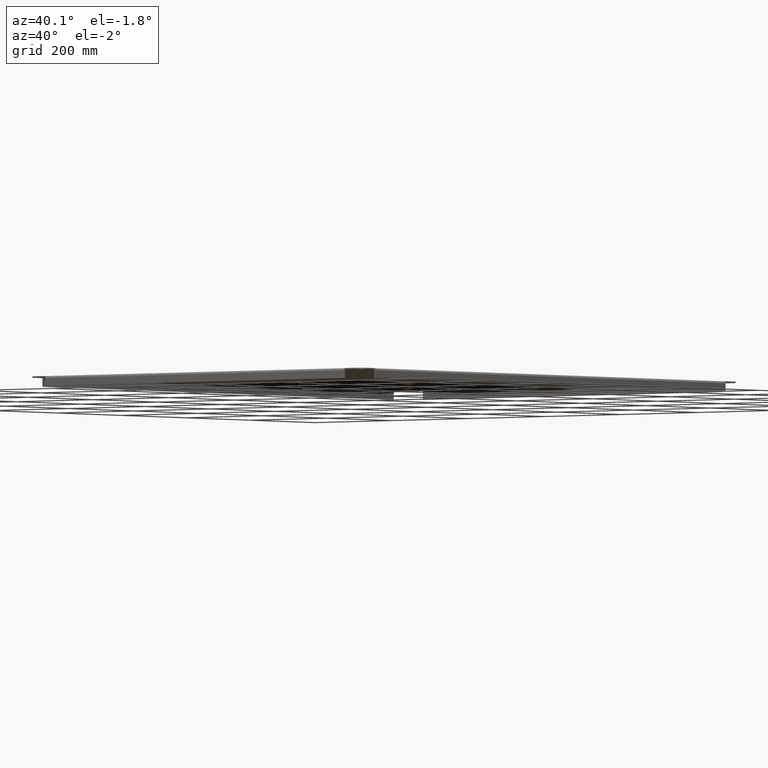
[diagram: clean part render]
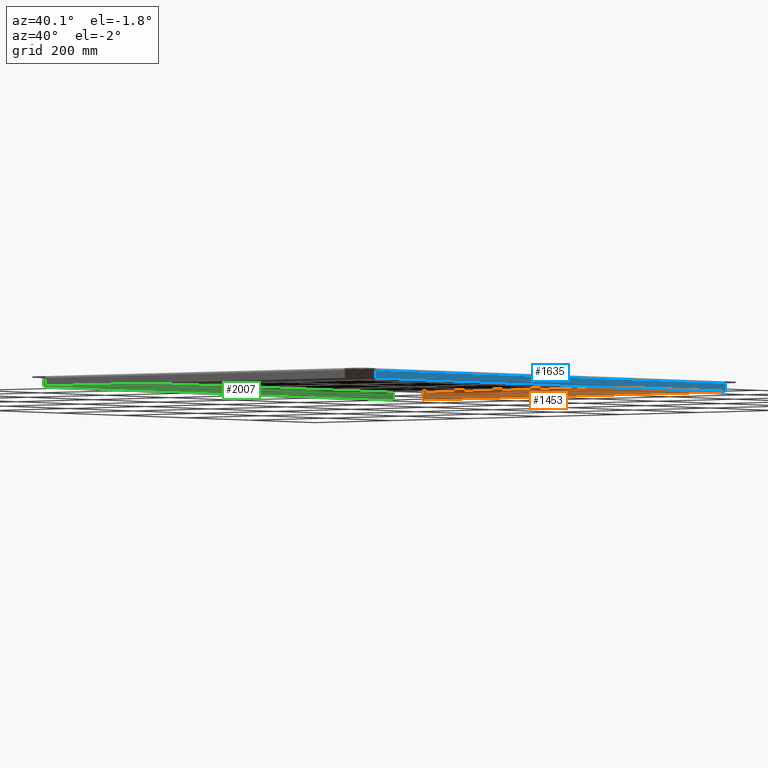
[diagram: same view with three faces highlighted in distinct colors, each labeled with its STEP entity id]
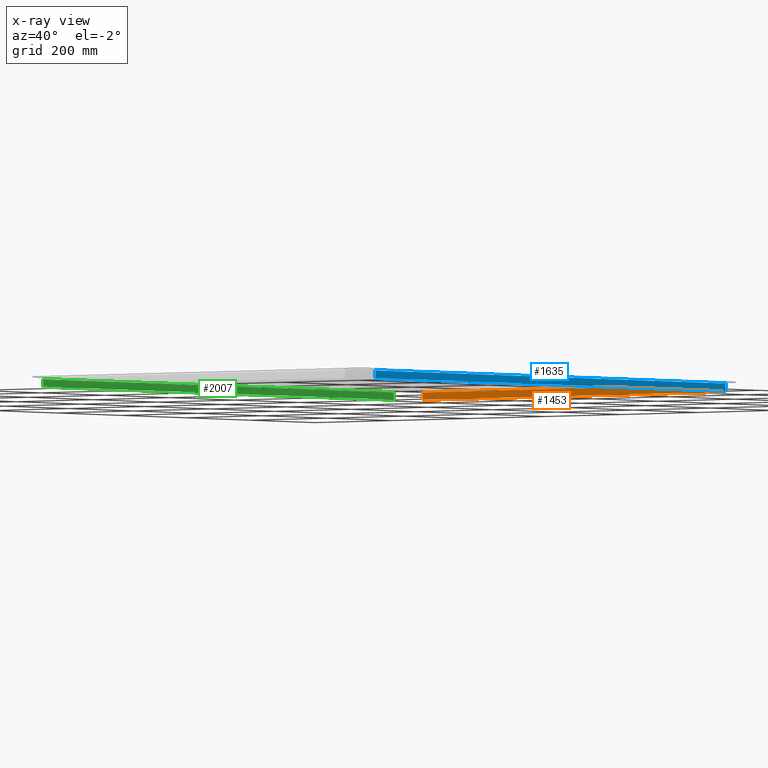
[diagram: x-ray of the same camera — body ghosted, the three highlighted faces saturated]
A machine part, auxiliary view with three faces highlighted in distinct colors.
The next image is the same camera in x-ray (body ghosted, the three faces saturated) — at least one of them is partly hidden behind the body in this view.
Their STEP definitions:

[orange] entity #1453 — the highlighted planar face has unit normal (0, -1, 0).
#1364=CARTESIAN_POINT('',(32.481999999999992,46.10625000000001,-0.68025));
#1365=VERTEX_POINT('',#1364);
#1366=CARTESIAN_POINT('',(32.481999999999992,46.106250000000003,-0.093750000000444));
#1367=VERTEX_POINT('',#1366);
#1368=CARTESIAN_POINT('',(32.481999999999992,46.10625000000001,-0.68025));
#1369=DIRECTION('',(0.0,0.0,1.0));
#1370=VECTOR('',#1369,0.5865);
#1371=LINE('',#1368,#1370);
#1372=EDGE_CURVE('',#1365,#1367,#1371,.T.);
#1412=CARTESIAN_POINT('',(1.717999999999987,46.106250000000003,-0.68025));
#1413=VERTEX_POINT('',#1412);
#1414=CARTESIAN_POINT('',(1.717999999999987,46.106250000000003,-0.68025));
#1415=DIRECTION('',(1.0,0.0,0.0));
#1416=VECTOR('',#1415,30.764000000000006);
#1417=LINE('',#1414,#1416);
#1418=EDGE_CURVE('',#1413,#1365,#1417,.T.);
#1430=CARTESIAN_POINT('',(1.717999999999987,46.106250000000003,-0.68025));
#1431=DIRECTION('',(0.0,-1.0,0.0));
#1432=DIRECTION('',(0.0,0.0,-1.0));
#1433=AXIS2_PLACEMENT_3D('',#1430,#1431,#1432);
#1434=PLANE('',#1433);
#1435=CARTESIAN_POINT('',(1.717999999999989,46.106249999999996,-0.093750000000012));
#1436=VERTEX_POINT('',#1435);
#1437=CARTESIAN_POINT('',(1.717999999999986,46.106249999999996,-0.09375000000001));
#1438=DIRECTION('',(1.0,0.0,0.0));
#1439=VECTOR('',#1438,30.764000000000006);
#1440=LINE('',#1437,#1439);
#1441=EDGE_CURVE('',#1436,#1367,#1440,.T.);
#1442=ORIENTED_EDGE('',*,*,#1441,.F.);
#1443=CARTESIAN_POINT('',(1.717999999999987,46.106250000000003,-0.09375));
#1444=DIRECTION('',(0.0,0.0,-1.0));
#1445=VECTOR('',#1444,0.5865);
#1446=LINE('',#1443,#1445);
#1447=EDGE_CURVE('',#1436,#1413,#1446,.T.);
#1448=ORIENTED_EDGE('',*,*,#1447,.T.);
#1449=ORIENTED_EDGE('',*,*,#1418,.T.);
#1450=ORIENTED_EDGE('',*,*,#1372,.T.);
#1451=EDGE_LOOP('',(#1442,#1448,#1449,#1450));
#1452=FACE_OUTER_BOUND('',#1451,.T.);
#1453=ADVANCED_FACE('',(#1452),#1434,.T.);

[blue] entity #1635 — the highlighted planar face has unit normal (1, 0, 0).
#1596=CARTESIAN_POINT('',(34.199999999999996,44.482000000000006,0.09375));
#1597=DIRECTION('',(1.0,0.0,0.0));
#1598=DIRECTION('',(0.0,0.0,-1.0));
#1599=AXIS2_PLACEMENT_3D('',#1596,#1597,#1598);
#1600=PLANE('',#1599);
#1601=CARTESIAN_POINT('',(34.199999999999996,1.717999999999995,-0.093750000000019));
#1602=VERTEX_POINT('',#1601);
#1603=CARTESIAN_POINT('',(34.199999999999989,44.481999999999999,-0.093750000000012));
#1604=VERTEX_POINT('',#1603);
#1605=CARTESIAN_POINT('',(34.199999999999989,1.717999999999989,-0.093750000000015));
#1606=DIRECTION('',(0.0,1.0,0.0));
#1607=VECTOR('',#1606,42.76400000000001);
#1608=LINE('',#1605,#1607);
#1609=EDGE_CURVE('',#1602,#1604,#1608,.T.);
#1610=ORIENTED_EDGE('',*,*,#1609,.F.);
#1611=CARTESIAN_POINT('',(34.200000000000003,1.717999999999995,-0.68025));
#1612=VERTEX_POINT('',#1611);
#1613=CARTESIAN_POINT('',(34.200000000000003,1.718,-0.09375));
#1614=DIRECTION('',(0.0,0.0,-1.0));
#1615=VECTOR('',#1614,0.5865);
#1616=LINE('',#1613,#1615);
#1617=EDGE_CURVE('',#1602,#1612,#1616,.T.);
#1618=ORIENTED_EDGE('',*,*,#1617,.T.);
#1619=CARTESIAN_POINT('',(34.199999999999996,44.482000000000006,-0.68025));
#1620=VERTEX_POINT('',#1619);
#1621=CARTESIAN_POINT('',(34.199999999999996,44.482000000000006,-0.68025));
#1622=DIRECTION('',(0.0,-1.0,0.0));
#1623=VECTOR('',#1622,42.76400000000001);
#1624=LINE('',#1621,#1623);
#1625=EDGE_CURVE('',#1620,#1612,#1624,.T.);
#1626=ORIENTED_EDGE('',*,*,#1625,.F.);
#1627=CARTESIAN_POINT('',(34.199999999999996,44.482000000000006,-0.68025));
#1628=DIRECTION('',(0.0,0.0,1.0));
#1629=VECTOR('',#1628,0.5865);
#1630=LINE('',#1627,#1629);
#1631=EDGE_CURVE('',#1620,#1604,#1630,.T.);
#1632=ORIENTED_EDGE('',*,*,#1631,.T.);
#1633=EDGE_LOOP('',(#1610,#1618,#1626,#1632));
#1634=FACE_OUTER_BOUND('',#1633,.T.);
#1635=ADVANCED_FACE('',(#1634),#1600,.T.);

[green] entity #2007 — the highlighted planar face has unit normal (1, 0, 0).
#1918=CARTESIAN_POINT('',(0.093749999999986,44.481999999999999,-0.68025));
#1919=VERTEX_POINT('',#1918);
#1920=CARTESIAN_POINT('',(0.093749999999999,44.481999999999999,-0.093749999999744));
#1921=VERTEX_POINT('',#1920);
#1922=CARTESIAN_POINT('',(0.093749999999986,44.481999999999999,-0.68025));
#1923=DIRECTION('',(0.0,0.0,1.0));
#1924=VECTOR('',#1923,0.5865);
#1925=LINE('',#1922,#1924);
#1926=EDGE_CURVE('',#1919,#1921,#1925,.T.);
#1966=CARTESIAN_POINT('',(0.093749999999999,1.717999999999998,-0.68025));
#1967=VERTEX_POINT('',#1966);
#1968=CARTESIAN_POINT('',(0.093749999999999,1.717999999999998,-0.68025));
#1969=DIRECTION('',(0.0,1.0,0.0));
#1970=VECTOR('',#1969,42.764000000000003);
#1971=LINE('',#1968,#1970);
#1972=EDGE_CURVE('',#1967,#1919,#1971,.T.);
#1984=CARTESIAN_POINT('',(0.093749999999999,1.717999999999998,-0.68025));
#1985=DIRECTION('',(1.0,0.0,0.0));
#1986=DIRECTION('',(0.0,0.0,-1.0));
#1987=AXIS2_PLACEMENT_3D('',#1984,#1985,#1986);
#1988=PLANE('',#1987);
#1989=CARTESIAN_POINT('',(0.093750000000013,1.718,-0.093750000000027));
#1990=VERTEX_POINT('',#1989);
#1991=CARTESIAN_POINT('',(0.093750000000012,1.717999999999996,-0.093750000000027));
#1992=DIRECTION('',(0.0,1.0,0.0));
#1993=VECTOR('',#1992,42.763999999999996);
#1994=LINE('',#1991,#1993);
#1995=EDGE_CURVE('',#1990,#1921,#1994,.T.);
#1996=ORIENTED_EDGE('',*,*,#1995,.F.);
#1997=CARTESIAN_POINT('',(0.093749999999999,1.717999999999998,-0.09375));
#1998=DIRECTION('',(0.0,0.0,-1.0));
#1999=VECTOR('',#1998,0.5865);
#2000=LINE('',#1997,#1999);
#2001=EDGE_CURVE('',#1990,#1967,#2000,.T.);
#2002=ORIENTED_EDGE('',*,*,#2001,.T.);
#2003=ORIENTED_EDGE('',*,*,#1972,.T.);
#2004=ORIENTED_EDGE('',*,*,#1926,.T.);
#2005=EDGE_LOOP('',(#1996,#2002,#2003,#2004));
#2006=FACE_OUTER_BOUND('',#2005,.T.);
#2007=ADVANCED_FACE('',(#2006),#1988,.T.);